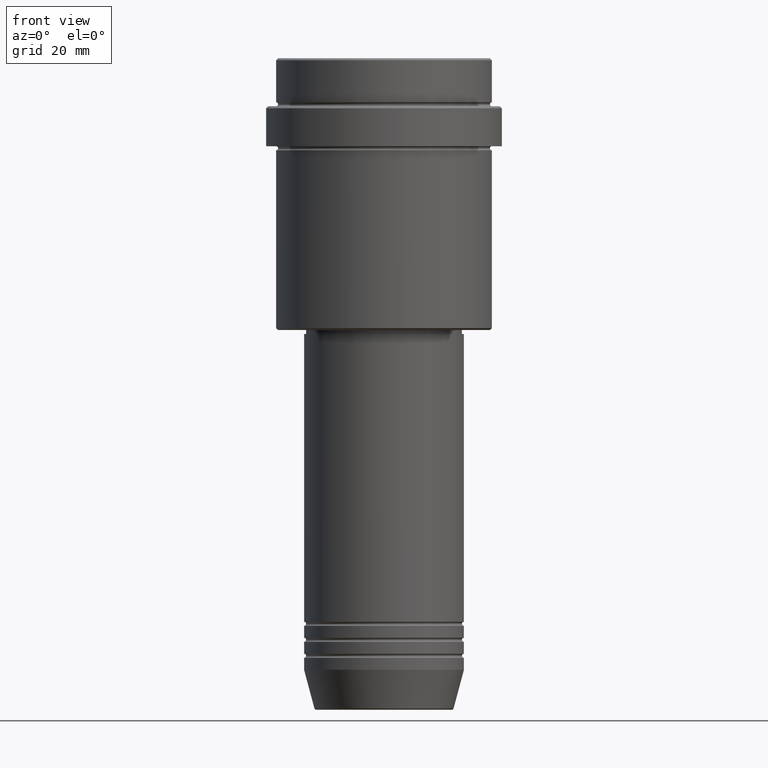
[diagram: clean part render]
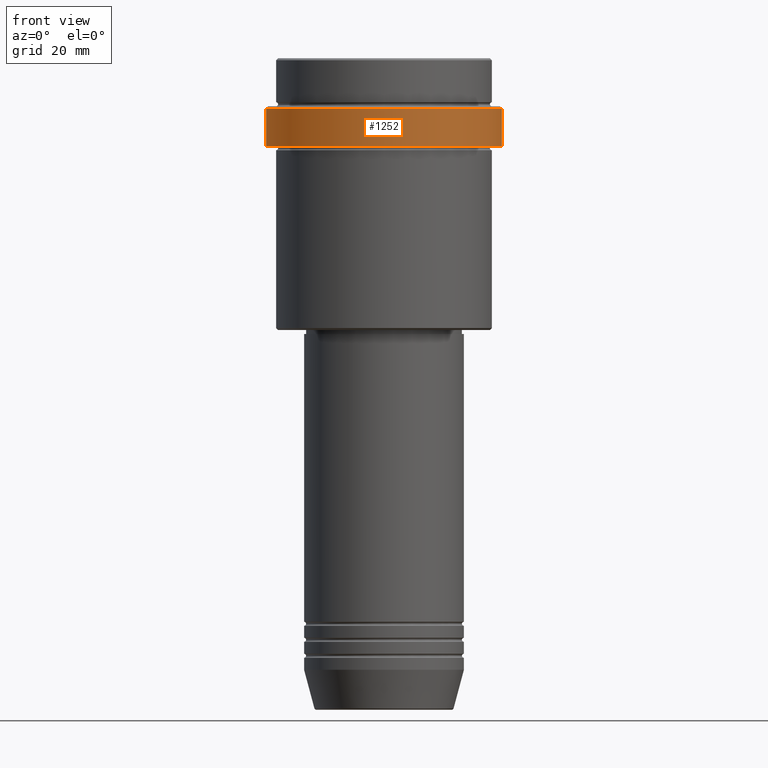
[diagram: same view with one face highlighted and labeled with its STEP entity id]
A machine part, front view. The second image highlights one B-rep face of the part: STEP entity #1252.
In plain terms, the highlighted cylindrical surface (partial cylindrical patch) has radius 29.5 mm, axis along (-0, -0, 1).
Its self-contained STEP definition (entity closure, byte-faithful):
#29 = CARTESIAN_POINT ( 'NONE',  ( -29.50000000000000000, 3.612708057484691604E-15, -12.49999999999999112 ) ) ;
#30 = AXIS2_PLACEMENT_3D ( 'NONE', #745, #652, #633 ) ;
#122 = VERTEX_POINT ( 'NONE', #897 ) ;
#152 = VECTOR ( 'NONE', #949, 1000.000000000000000 ) ;
#173 = CARTESIAN_POINT ( 'NONE',  ( -29.50000000000000000, 3.612708057484691604E-15, 0.000000000000000000 ) ) ;
#197 = CIRCLE ( 'NONE', #30, 29.50000000000000000 ) ;
#263 = ORIENTED_EDGE ( 'NONE', *, *, #887, .T. ) ;
#313 = EDGE_CURVE ( 'NONE', #1139, #607, #820, .T. ) ;
#328 = DIRECTION ( 'NONE',  ( 1.000000000000000000, 0.000000000000000000, 0.000000000000000000 ) ) ;
#501 = EDGE_CURVE ( 'NONE', #1139, #888, #504, .T. ) ;
#504 = CIRCLE ( 'NONE', #1192, 29.49999999999999645 ) ;
#522 = DIRECTION ( 'NONE',  ( 1.000000000000000000, 0.000000000000000000, 0.000000000000000000 ) ) ;
#585 = EDGE_LOOP ( 'NONE', ( #625, #1301, #842, #263 ) ) ;
#607 = VERTEX_POINT ( 'NONE', #29 ) ;
#624 = FACE_OUTER_BOUND ( 'NONE', #585, .T. ) ;
#625 = ORIENTED_EDGE ( 'NONE', *, *, #313, .F. ) ;
#633 = DIRECTION ( 'NONE',  ( 1.000000000000000000, 0.000000000000000000, 0.000000000000000000 ) ) ;
#652 = DIRECTION ( 'NONE',  ( 0.000000000000000000, 0.000000000000000000, -1.000000000000000000 ) ) ;
#745 = CARTESIAN_POINT ( 'NONE',  ( 0.000000000000000000, 0.000000000000000000, -12.49999999999999112 ) ) ;
#820 = LINE ( 'NONE', #173, #152 ) ;
#842 = ORIENTED_EDGE ( 'NONE', *, *, #1023, .T. ) ;
#870 = CARTESIAN_POINT ( 'NONE',  ( 0.000000000000000000, 0.000000000000000000, -21.99999999999999289 ) ) ;
#887 = EDGE_CURVE ( 'NONE', #122, #607, #197, .T. ) ;
#888 = VERTEX_POINT ( 'NONE', #1073 ) ;
#897 = CARTESIAN_POINT ( 'NONE',  ( 29.50000000000000000, 0.000000000000000000, -12.49999999999999112 ) ) ;
#911 = CARTESIAN_POINT ( 'NONE',  ( 29.50000000000000000, 0.000000000000000000, 0.000000000000000000 ) ) ;
#949 = DIRECTION ( 'NONE',  ( -0.000000000000000000, -0.000000000000000000, 1.000000000000000000 ) ) ;
#970 = AXIS2_PLACEMENT_3D ( 'NONE', #1065, #1392, #522 ) ;
#1023 = EDGE_CURVE ( 'NONE', #888, #122, #1316, .T. ) ;
#1065 = CARTESIAN_POINT ( 'NONE',  ( 0.000000000000000000, 0.000000000000000000, 0.000000000000000000 ) ) ;
#1073 = CARTESIAN_POINT ( 'NONE',  ( 29.49999999999999645, 0.000000000000000000, -21.99999999999999289 ) ) ;
#1139 = VERTEX_POINT ( 'NONE', #1245 ) ;
#1168 = CYLINDRICAL_SURFACE ( 'NONE', #970, 29.50000000000000000 ) ;
#1192 = AXIS2_PLACEMENT_3D ( 'NONE', #870, #1305, #328 ) ;
#1213 = DIRECTION ( 'NONE',  ( -0.000000000000000000, -0.000000000000000000, 1.000000000000000000 ) ) ;
#1216 = VECTOR ( 'NONE', #1213, 1000.000000000000000 ) ;
#1245 = CARTESIAN_POINT ( 'NONE',  ( -29.49999999999999645, 3.612708057484690815E-15, -21.99999999999999289 ) ) ;
#1252 = ADVANCED_FACE ( 'NONE', ( #624 ), #1168, .T. ) ;
#1301 = ORIENTED_EDGE ( 'NONE', *, *, #501, .T. ) ;
#1305 = DIRECTION ( 'NONE',  ( -0.000000000000000000, -0.000000000000000000, 1.000000000000000000 ) ) ;
#1316 = LINE ( 'NONE', #911, #1216 ) ;
#1392 = DIRECTION ( 'NONE',  ( -0.000000000000000000, -0.000000000000000000, 1.000000000000000000 ) ) ;